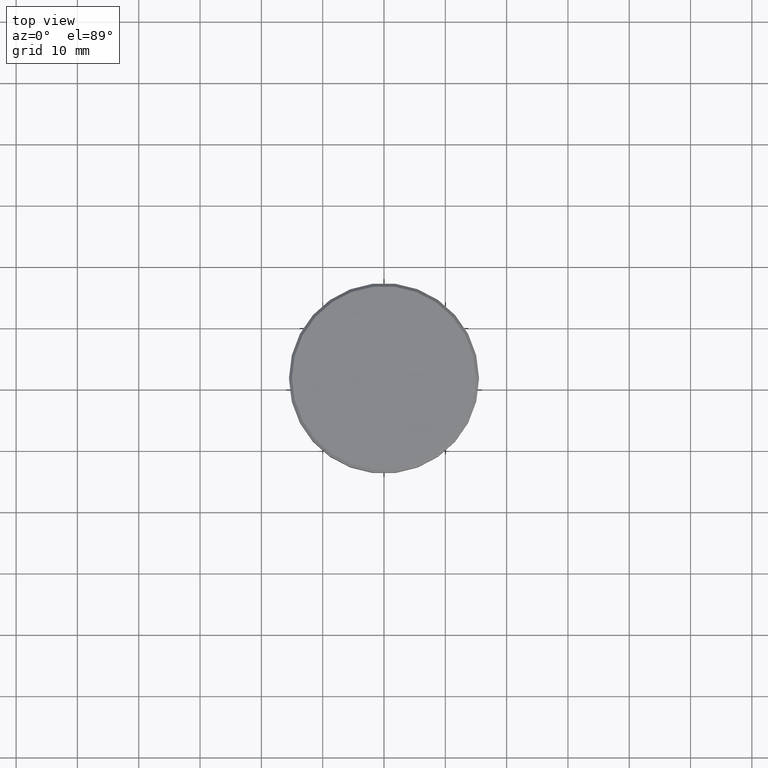
[diagram: clean part render]
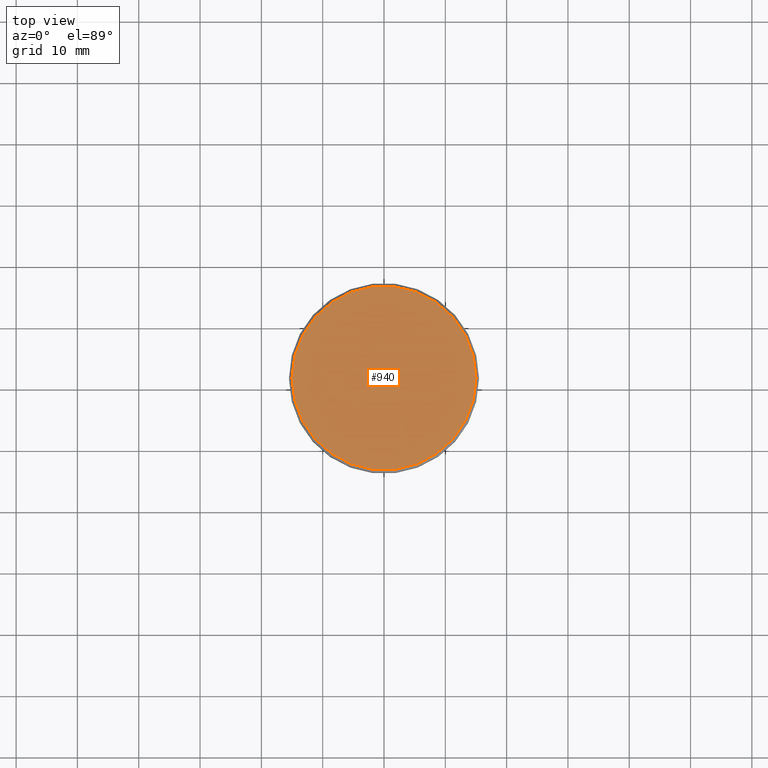
[diagram: same view with one face highlighted and labeled with its STEP entity id]
A machine part, top view. The second image highlights one B-rep face of the part: STEP entity #940.
In plain terms, the highlighted planar face has unit normal (0, -0, 1).
Its self-contained STEP definition (entity closure, byte-faithful):
#12 = EDGE_CURVE ( 'NONE', #467, #72, #355, .T. ) ;
#17 = CARTESIAN_POINT ( 'NONE',  ( 0.000000000000000000, 0.000000000000000000, 0.000000000000000000 ) ) ;
#19 = FACE_OUTER_BOUND ( 'NONE', #890, .T. ) ;
#43 = AXIS2_PLACEMENT_3D ( 'NONE', #17, #1119, #918 ) ;
#58 = ORIENTED_EDGE ( 'NONE', *, *, #185, .T. ) ;
#72 = VERTEX_POINT ( 'NONE', #401 ) ;
#185 = EDGE_CURVE ( 'NONE', #72, #467, #806, .T. ) ;
#205 = PLANE ( 'NONE',  #336 ) ;
#266 = CARTESIAN_POINT ( 'NONE',  ( 0.000000000000000000, 0.000000000000000000, 0.000000000000000000 ) ) ;
#336 = AXIS2_PLACEMENT_3D ( 'NONE', #1120, #930, #946 ) ;
#355 = CIRCLE ( 'NONE', #43, 14.99999999999998579 ) ;
#401 = CARTESIAN_POINT ( 'NONE',  ( -14.99999999999998579, 0.000000000000000000, 0.000000000000000000 ) ) ;
#413 = AXIS2_PLACEMENT_3D ( 'NONE', #266, #498, #868 ) ;
#467 = VERTEX_POINT ( 'NONE', #683 ) ;
#498 = DIRECTION ( 'NONE',  ( -0.000000000000000000, -0.000000000000000000, 1.000000000000000000 ) ) ;
#683 = CARTESIAN_POINT ( 'NONE',  ( 14.99999999999998579, 1.867586368699712587E-15, 0.000000000000000000 ) ) ;
#806 = CIRCLE ( 'NONE', #413, 14.99999999999998579 ) ;
#868 = DIRECTION ( 'NONE',  ( 1.000000000000000000, 0.000000000000000000, 0.000000000000000000 ) ) ;
#890 = EDGE_LOOP ( 'NONE', ( #58, #1010 ) ) ;
#918 = DIRECTION ( 'NONE',  ( 1.000000000000000000, 0.000000000000000000, 0.000000000000000000 ) ) ;
#930 = DIRECTION ( 'NONE',  ( 0.000000000000000000, -0.000000000000000000, 1.000000000000000000 ) ) ;
#940 = ADVANCED_FACE ( 'NONE', ( #19 ), #205, .T. ) ;
#946 = DIRECTION ( 'NONE',  ( 1.000000000000000000, 0.000000000000000000, 0.000000000000000000 ) ) ;
#1010 = ORIENTED_EDGE ( 'NONE', *, *, #12, .T. ) ;
#1119 = DIRECTION ( 'NONE',  ( -0.000000000000000000, -0.000000000000000000, 1.000000000000000000 ) ) ;
#1120 = CARTESIAN_POINT ( 'NONE',  ( 0.000000000000000000, 0.000000000000000000, 0.000000000000000000 ) ) ;